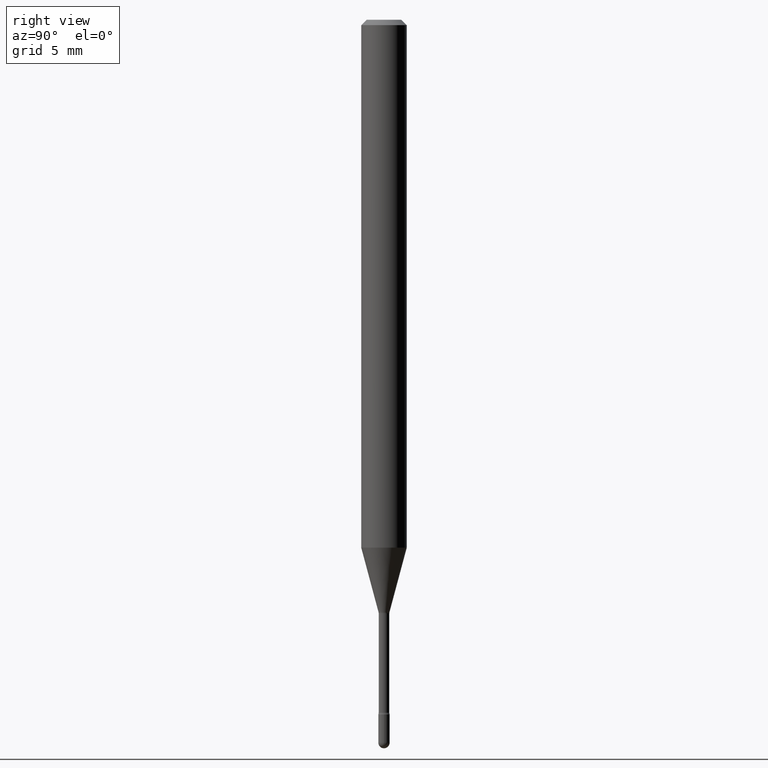
[diagram: clean part render]
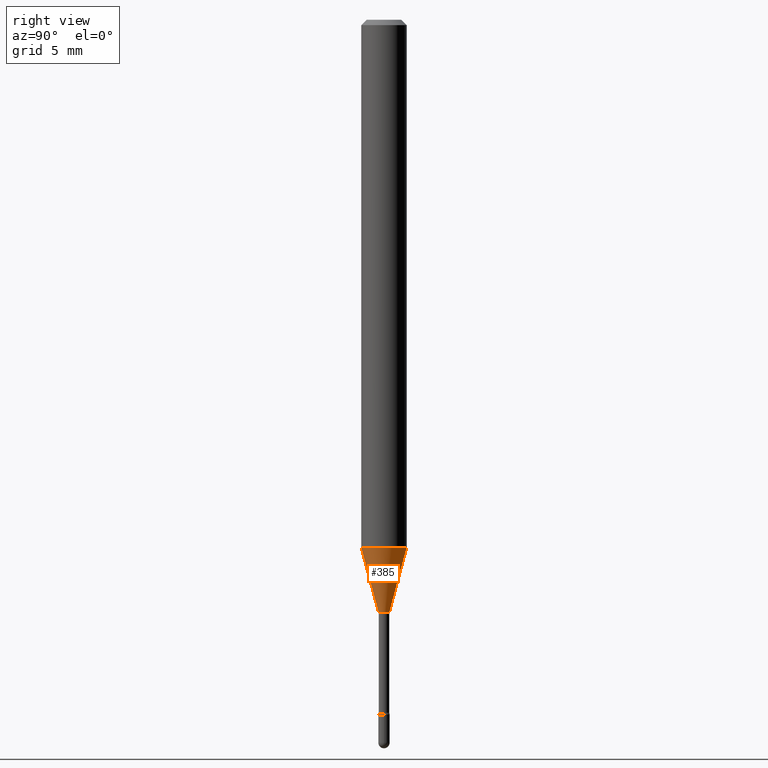
[diagram: same view with one face highlighted and labeled with its STEP entity id]
A machine part, right view. The second image highlights one B-rep face of the part: STEP entity #385.
In plain terms, the highlighted conical surface has half-angle 15 deg.
Its self-contained STEP definition (entity closure, byte-faithful):
#10 = CARTESIAN_POINT ( 'NONE',  ( 4.440892098500978191E-16, 0.06249999999999492073, -1.449048163777072906 ) ) ;
#12 = CARTESIAN_POINT ( 'NONE',  ( 2.755524256971659993E-16, 0.01506111260565827503, -1.626092501787273159 ) ) ;
#25 = ORIENTED_EDGE ( 'NONE', *, *, #433, .F. ) ;
#29 = EDGE_LOOP ( 'NONE', ( #232, #522, #25, #448 ) ) ;
#36 = VERTEX_POINT ( 'NONE', #514 ) ;
#75 = VERTEX_POINT ( 'NONE', #10 ) ;
#114 = CARTESIAN_POINT ( 'NONE',  ( -4.364351673553563186E-16, -0.06250000000000507927, -1.449048163777072240 ) ) ;
#127 = VECTOR ( 'NONE', #159, 39.37007874015748854 ) ;
#131 = DIRECTION ( 'NONE',  ( -6.982962677686265922E-15, -1.000000000000000000, 4.370956789862821150E-15 ) ) ;
#152 = DIRECTION ( 'NONE',  ( -6.982962677686265133E-15, -1.000000000000000000, 0.000000000000000000 ) ) ;
#159 = DIRECTION ( 'NONE',  ( -1.807323732225328562E-15, -0.2588190451025179639, 0.9659258262890690894 ) ) ;
#160 = VERTEX_POINT ( 'NONE', #114 ) ;
#175 = CIRCLE ( 'NONE', #254, 0.01506111260566395105 ) ;
#176 = VECTOR ( 'NONE', #435, 39.37007874015748854 ) ;
#177 = EDGE_CURVE ( 'NONE', #36, #342, #175, .T. ) ;
#199 = AXIS2_PLACEMENT_3D ( 'NONE', #329, #332, #443 ) ;
#230 = DIRECTION ( 'NONE',  ( -2.445463809477115105E-29, 3.491488494413427226E-15, 1.000000000000000000 ) ) ;
#232 = ORIENTED_EDGE ( 'NONE', *, *, #177, .T. ) ;
#233 = LINE ( 'NONE', #444, #176 ) ;
#254 = AXIS2_PLACEMENT_3D ( 'NONE', #418, #230, #152 ) ;
#260 = DIRECTION ( 'NONE',  ( -2.445463809477115105E-29, 3.491488494413427226E-15, 1.000000000000000000 ) ) ;
#301 = CARTESIAN_POINT ( 'NONE',  ( 3.543594842706099402E-29, -5.059334991678553225E-15, -1.449048163777072684 ) ) ;
#329 = CARTESIAN_POINT ( 'NONE',  ( 3.976550363982877177E-29, -5.677483260842208723E-15, -1.626092501787273159 ) ) ;
#332 = DIRECTION ( 'NONE',  ( -2.445463809477115105E-29, 3.491488494413427226E-15, 1.000000000000000000 ) ) ;
#336 = EDGE_CURVE ( 'NONE', #342, #75, #233, .T. ) ;
#342 = VERTEX_POINT ( 'NONE', #12 ) ;
#350 = EDGE_CURVE ( 'NONE', #36, #160, #476, .T. ) ;
#358 = CONICAL_SURFACE ( 'NONE', #199, 0.01506111260566395105, 0.2617993877991500740 ) ;
#385 = ADVANCED_FACE ( 'NONE', ( #491 ), #358, .T. ) ;
#418 = CARTESIAN_POINT ( 'NONE',  ( 3.976550363982877177E-29, -5.677483260842208723E-15, -1.626092501787273159 ) ) ;
#433 = EDGE_CURVE ( 'NONE', #160, #75, #441, .T. ) ;
#435 = DIRECTION ( 'NONE',  ( 1.839019923739598738E-15, 0.2588190451025247363, 0.9659258262890673130 ) ) ;
#441 = CIRCLE ( 'NONE', #526, 0.06250000000000000000 ) ;
#443 = DIRECTION ( 'NONE',  ( -6.982962677686265133E-15, -1.000000000000000000, 0.000000000000000000 ) ) ;
#444 = CARTESIAN_POINT ( 'NONE',  ( 1.070156415442336988E-16, 0.01506111260565827330, -1.626092501787273159 ) ) ;
#448 = ORIENTED_EDGE ( 'NONE', *, *, #350, .F. ) ;
#476 = LINE ( 'NONE', #547, #127 ) ;
#491 = FACE_OUTER_BOUND ( 'NONE', #29, .T. ) ;
#514 = CARTESIAN_POINT ( 'NONE',  ( -1.051711872097417477E-16, -0.01506111260566962880, -1.626092501787273159 ) ) ;
#522 = ORIENTED_EDGE ( 'NONE', *, *, #336, .T. ) ;
#526 = AXIS2_PLACEMENT_3D ( 'NONE', #301, #260, #131 ) ;
#547 = CARTESIAN_POINT ( 'NONE',  ( -1.051711872097417477E-16, -0.01506111260566962880, -1.626092501787273159 ) ) ;